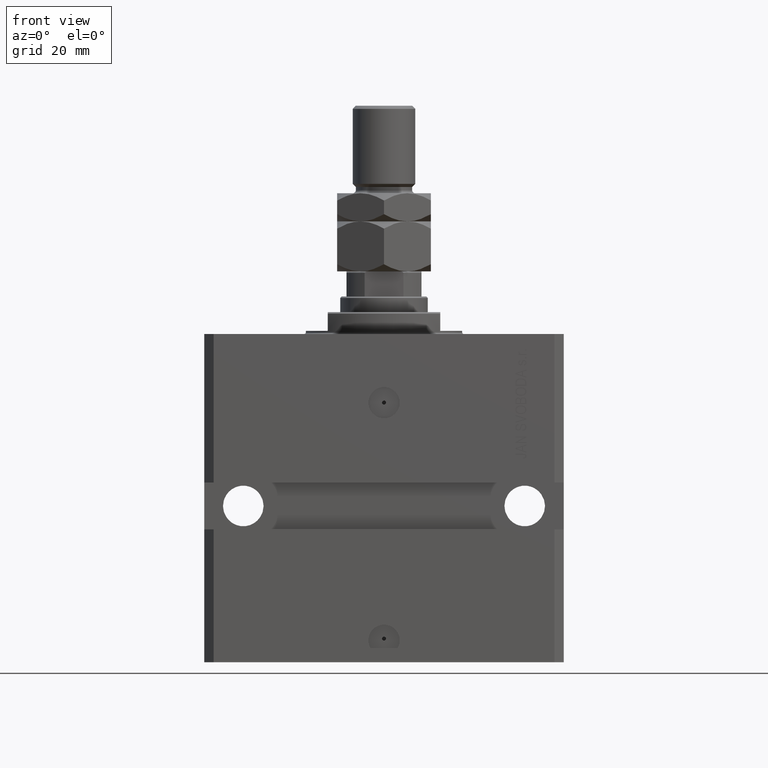
[diagram: clean part render]
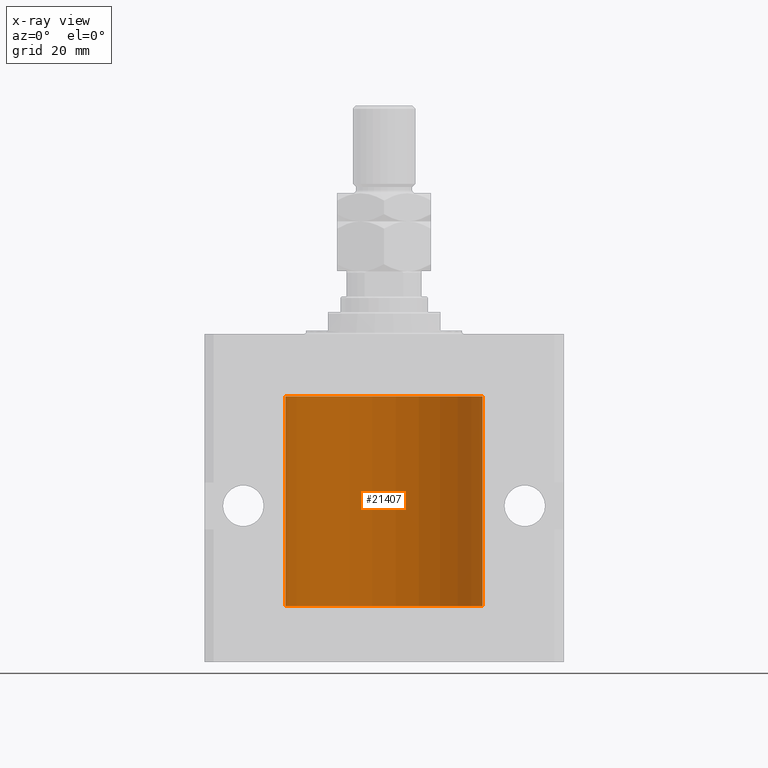
[diagram: x-ray — body ghosted, one internal face saturated and labeled with its STEP entity id]
A machine part, front view, then the same camera in x-ray: the body is ghosted and one INTERNAL B-rep face — a face not visible from any outside direction — is saturated and labeled: STEP entity #21407.
In plain terms, the highlighted cylindrical surface (partial cylindrical patch) has radius 31.5 mm, axis along (0, 0, 1).
Its self-contained STEP definition (entity closure, byte-faithful):
#73 = VECTOR ( 'NONE', #11998, 1000.000000000000000 ) ;
#453 = DIRECTION ( 'NONE',  ( -0.000000000000000000, -0.000000000000000000, 1.000000000000000000 ) ) ;
#626 = VERTEX_POINT ( 'NONE', #49379 ) ;
#755 = CARTESIAN_POINT ( 'NONE',  ( -31.50000000000000000, 3.857637417314162689E-15, -87.09999999999999432 ) ) ;
#942 = EDGE_CURVE ( 'NONE', #26500, #33557, #9376, .T. ) ;
#949 = CARTESIAN_POINT ( 'NONE',  ( -31.49379784581975272, 0.6250577973157672718, -84.16284184848845484 ) ) ;
#1196 = CARTESIAN_POINT ( 'NONE',  ( -31.49528028230855270, 0.5573323339569611345, -83.67349008819321909 ) ) ;
#1249 = EDGE_CURVE ( 'NONE', #5284, #40897, #41856, .T. ) ;
#1698 = CARTESIAN_POINT ( 'NONE',  ( -31.49526081842315151, 0.5587119163470756211, -84.32511513093052713 ) ) ;
#2864 = CARTESIAN_POINT ( 'NONE',  ( -31.49380014137586414, 0.6249421240571522151, -28.83671479190292075 ) ) ;
#2955 = CARTESIAN_POINT ( 'NONE',  ( 31.49770674525947101, 0.3844410175904570126, -29.49948347834465068 ) ) ;
#2999 = VECTOR ( 'NONE', #21179, 1000.000000000000000 ) ;
#3024 = CARTESIAN_POINT ( 'NONE',  ( -31.50000000000006395, 3.480981129463732167E-13, -84.62500000000324007 ) ) ;
#3166 = DIRECTION ( 'NONE',  ( 0.000000000000000000, 0.000000000000000000, 1.000000000000000000 ) ) ;
#3346 = EDGE_LOOP ( 'NONE', ( #13160, #38398, #16537, #26370, #8882, #19718, #13960, #41762, #34990, #38172, #24400, #17525, #46206, #20488 ) ) ;
#3899 = CARTESIAN_POINT ( 'NONE',  ( 0.000000000000000000, 0.000000000000000000, -87.09999999999999432 ) ) ;
#4084 = CARTESIAN_POINT ( 'NONE',  ( 31.50000000000000000, -1.286676774952591455E-15, -29.62500000000000000 ) ) ;
#5284 = VERTEX_POINT ( 'NONE', #44558 ) ;
#5496 = VERTEX_POINT ( 'NONE', #32636 ) ;
#5531 = CARTESIAN_POINT ( 'NONE',  ( 31.50000000000000000, 0.000000000000000000, -87.09999999999999432 ) ) ;
#5558 = CARTESIAN_POINT ( 'NONE',  ( -31.49966591610109390, 0.1636376958180636443, -83.39126189995840832 ) ) ;
#5582 = AXIS2_PLACEMENT_3D ( 'NONE', #28767, #13357, #24143 ) ;
#6409 = CARTESIAN_POINT ( 'NONE',  ( 31.50000000000000000, -2.492939093807799249E-15, -84.62499999999998579 ) ) ;
#6860 = VERTEX_POINT ( 'NONE', #28270 ) ;
#7223 = CARTESIAN_POINT ( 'NONE',  ( -31.49770767031179730, 0.3843648832734374854, -28.50046081259655395 ) ) ;
#7279 = CARTESIAN_POINT ( 'NONE',  ( 31.50000000000000000, -2.492939093807799249E-15, -84.62499999999998579 ) ) ;
#7733 = EDGE_CURVE ( 'NONE', #33557, #28521, #47917, .T. ) ;
#7782 = EDGE_CURVE ( 'NONE', #46699, #40897, #9888, .T. ) ;
#8458 = DIRECTION ( 'NONE',  ( 0.000000000000000000, 0.000000000000000000, 1.000000000000000000 ) ) ;
#8533 = CARTESIAN_POINT ( 'NONE',  ( 31.49379899281745665, 0.6250000000082825968, -83.99999999999904787 ) ) ;
#8543 = CARTESIAN_POINT ( 'NONE',  ( 31.49770674525946390, 0.3844410175904657834, -84.49948347834464357 ) ) ;
#8655 = CARTESIAN_POINT ( 'NONE',  ( -31.49999999999998579, 0.08259258789479478891, -83.37499999999998579 ) ) ;
#8882 = ORIENTED_EDGE ( 'NONE', *, *, #42373, .T. ) ;
#9062 = AXIS2_PLACEMENT_3D ( 'NONE', #39274, #8458, #23594 ) ;
#9376 = B_SPLINE_CURVE_WITH_KNOTS ( 'NONE', 3,
 ( #31080, #12324, #26960, #20005, #35674, #43119 ),
 .UNSPECIFIED., .F., .F.,
 ( 4, 2, 4 ),
 ( 0.0009772631991206452359, 0.001465673424414174614, 0.001954083649707703992 ),
 .UNSPECIFIED. ) ;
#9405 = CARTESIAN_POINT ( 'NONE',  ( -31.50000000000000000, 7.975607743522037396E-16, -83.37500000000000000 ) ) ;
#9888 = LINE ( 'NONE', #37614, #33348 ) ;
#10057 = VECTOR ( 'NONE', #25035, 1000.000000000000000 ) ;
#11213 = EDGE_CURVE ( 'NONE', #11453, #26500, #22756, .T. ) ;
#11410 = CARTESIAN_POINT ( 'NONE',  ( 31.49966575203784558, 0.1636755595825546972, -29.60873030821186802 ) ) ;
#11453 = VERTEX_POINT ( 'NONE', #4084 ) ;
#11998 = DIRECTION ( 'NONE',  ( -0.000000000000000000, -0.000000000000000000, 1.000000000000000000 ) ) ;
#12324 = CARTESIAN_POINT ( 'NONE',  ( 31.49379899281762363, 0.6249999999996151967, -28.83697036533062885 ) ) ;
#12512 = CARTESIAN_POINT ( 'NONE',  ( -31.50000000000006395, 3.480981129463732167E-13, -84.62500000000324007 ) ) ;
#13160 = ORIENTED_EDGE ( 'NONE', *, *, #7782, .F. ) ;
#13357 = DIRECTION ( 'NONE',  ( -0.000000000000000000, -0.000000000000000000, 1.000000000000000000 ) ) ;
#13960 = ORIENTED_EDGE ( 'NONE', *, *, #11213, .T. ) ;
#14154 = CARTESIAN_POINT ( 'NONE',  ( 31.49853627283156499, 0.3253078817183396310, -83.44140989403643971 ) ) ;
#14399 = EDGE_CURVE ( 'NONE', #6860, #31619, #20009, .T. ) ;
#14420 = CARTESIAN_POINT ( 'NONE',  ( -31.49379784581975983, 0.6250577973157599443, -29.16284184848848327 ) ) ;
#14428 = DIRECTION ( 'NONE',  ( -0.000000000000000000, -0.000000000000000000, 1.000000000000000000 ) ) ;
#14503 = B_SPLINE_CURVE_WITH_KNOTS ( 'NONE', 3,
 ( #7279, #22929, #28563, #20847, #8543, #23940, #47578, #44217 ),
 .UNSPECIFIED., .F., .F.,
 ( 4, 2, 2, 4 ),
 ( 2.422664849601941982E-18, 0.0002443157997801665674, 0.0004886315995603306411, 0.0009772631991206588969 ),
 .UNSPECIFIED. ) ;
#14933 = CARTESIAN_POINT ( 'NONE',  ( -31.50000000000000000, 0.08259258789479792529, -28.37500000000000355 ) ) ;
#15021 = CARTESIAN_POINT ( 'NONE',  ( 31.49379899281745665, 0.6250000000082756024, -28.99999999999905853 ) ) ;
#15145 = B_SPLINE_CURVE_WITH_KNOTS ( 'NONE', 3,
 ( #8533, #39858, #32169, #14154, #29319, #17748 ),
 .UNSPECIFIED., .F., .F.,
 ( 4, 2, 4 ),
 ( 0.0009772631991206588969, 0.001465673424414194563, 0.001954083649707730446 ),
 .UNSPECIFIED. ) ;
#15620 = CARTESIAN_POINT ( 'NONE',  ( 31.50000000000000000, 0.000000000000000000, -87.09999999999999432 ) ) ;
#15846 = LINE ( 'NONE', #31526, #73 ) ;
#16537 = ORIENTED_EDGE ( 'NONE', *, *, #18033, .T. ) ;
#17365 = CARTESIAN_POINT ( 'NONE',  ( -31.49853548231893541, 0.3253851488062164399, -84.55855470525685291 ) ) ;
#17525 = ORIENTED_EDGE ( 'NONE', *, *, #14399, .T. ) ;
#17748 = CARTESIAN_POINT ( 'NONE',  ( 31.50000000000006395, 3.442404755096224483E-13, -83.37499999999675993 ) ) ;
#18019 = CIRCLE ( 'NONE', #50832, 31.50000000000000000 ) ;
#18033 = EDGE_CURVE ( 'NONE', #30569, #30515, #42153, .T. ) ;
#18263 = CARTESIAN_POINT ( 'NONE',  ( -31.49526081842315151, 0.5587119163470772865, -29.32511513093050937 ) ) ;
#18289 = VECTOR ( 'NONE', #453, 1000.000000000000000 ) ;
#18353 = CARTESIAN_POINT ( 'NONE',  ( 31.50000000000000711, 0.08261130139621915280, -29.62499999999999289 ) ) ;
#19025 = CARTESIAN_POINT ( 'NONE',  ( -31.49966591610108679, 0.1636376958180631447, -28.39126189995838700 ) ) ;
#19718 = ORIENTED_EDGE ( 'NONE', *, *, #28254, .T. ) ;
#20005 = CARTESIAN_POINT ( 'NONE',  ( 31.49853627283156499, 0.3253078817183363558, -28.44140989403645747 ) ) ;
#20009 = B_SPLINE_CURVE_WITH_KNOTS ( 'NONE', 3,
 ( #50108, #14933, #19025, #42392, #7223, #49855, #2864, #14420, #18263, #46005, #22871, #34699 ),
 .UNSPECIFIED., .F., .F.,
 ( 4, 2, 2, 2, 2, 4 ),
 ( 5.322949309211407119E-19, 0.0002442604562134704257, 0.0004885209124269403094, 0.0009770418248538795345, 0.001465562737280818977, 0.001954083649707758635 ),
 .UNSPECIFIED. ) ;
#20454 = CARTESIAN_POINT ( 'NONE',  ( -31.50000000000000000, 3.857637417314162689E-15, -20.00000000000000355 ) ) ;
#20488 = ORIENTED_EDGE ( 'NONE', *, *, #1249, .T. ) ;
#20847 = CARTESIAN_POINT ( 'NONE',  ( 31.49851501686590893, 0.3150934959385818801, -84.54594721883857744 ) ) ;
#21179 = DIRECTION ( 'NONE',  ( -0.000000000000000000, -0.000000000000000000, 1.000000000000000000 ) ) ;
#21205 = CARTESIAN_POINT ( 'NONE',  ( -31.49380014137585704, 0.6249421240571523262, -83.83671479190289233 ) ) ;
#21407 = ADVANCED_FACE ( 'NONE', ( #48285 ), #35960, .F. ) ;
#21638 = CARTESIAN_POINT ( 'NONE',  ( 31.49379899281745665, 0.6250000000082756024, -28.99999999999905853 ) ) ;
#22756 = B_SPLINE_CURVE_WITH_KNOTS ( 'NONE', 3,
 ( #22965, #18353, #11410, #34783, #2955, #38643, #38891, #15021 ),
 .UNSPECIFIED., .F., .F.,
 ( 4, 2, 2, 4 ),
 ( 1.824539386392990385E-18, 0.0002443157997801608753, 0.0004886315995603199075, 0.0009772631991206452359 ),
 .UNSPECIFIED. ) ;
#22871 = CARTESIAN_POINT ( 'NONE',  ( -31.50000000000000711, 0.1631661150515227865, -29.62499999999986500 ) ) ;
#22929 = CARTESIAN_POINT ( 'NONE',  ( 31.50000000000000000, 0.08261130139621999935, -84.62499999999995737 ) ) ;
#22965 = CARTESIAN_POINT ( 'NONE',  ( 31.50000000000000000, -1.286676774952591455E-15, -29.62500000000000000 ) ) ;
#23594 = DIRECTION ( 'NONE',  ( 1.000000000000000000, 0.000000000000000000, 0.000000000000000000 ) ) ;
#23940 = CARTESIAN_POINT ( 'NONE',  ( 31.49527883250257432, 0.5574151849338155884, -84.32638608454756479 ) ) ;
#24143 = DIRECTION ( 'NONE',  ( 1.000000000000000000, 0.000000000000000000, 0.000000000000000000 ) ) ;
#24400 = ORIENTED_EDGE ( 'NONE', *, *, #36126, .F. ) ;
#25035 = DIRECTION ( 'NONE',  ( -0.000000000000000000, -0.000000000000000000, 1.000000000000000000 ) ) ;
#25060 = CARTESIAN_POINT ( 'NONE',  ( -31.49770767031179730, 0.3843648832734379295, -83.50046081259654329 ) ) ;
#25731 = CARTESIAN_POINT ( 'NONE',  ( 31.50000000000000000, 0.000000000000000000, -87.09999999999999432 ) ) ;
#26370 = ORIENTED_EDGE ( 'NONE', *, *, #43081, .T. ) ;
#26500 = VERTEX_POINT ( 'NONE', #21638 ) ;
#26827 = CARTESIAN_POINT ( 'NONE',  ( 31.50000000000006395, 3.442404531757459093E-13, -28.37499999999677058 ) ) ;
#26960 = CARTESIAN_POINT ( 'NONE',  ( 31.49526225382467359, 0.5586305680866376910, -28.67476160622149806 ) ) ;
#27023 = EDGE_CURVE ( 'NONE', #28521, #49068, #38574, .T. ) ;
#28254 = EDGE_CURVE ( 'NONE', #5496, #11453, #15846, .T. ) ;
#28270 = CARTESIAN_POINT ( 'NONE',  ( -31.50000000000000000, 6.762885151983182724E-15, -28.37500000000000355 ) ) ;
#28521 = VERTEX_POINT ( 'NONE', #31471 ) ;
#28563 = CARTESIAN_POINT ( 'NONE',  ( 31.49966575203785268, 0.1636755595825563903, -84.60873030821188934 ) ) ;
#28767 = CARTESIAN_POINT ( 'NONE',  ( 0.000000000000000000, 0.000000000000000000, -87.09999999999999432 ) ) ;
#29319 = CARTESIAN_POINT ( 'NONE',  ( 31.50000000000000000, 0.1631291455194407158, -83.37500000000014211 ) ) ;
#30515 = VERTEX_POINT ( 'NONE', #6409 ) ;
#30569 = VERTEX_POINT ( 'NONE', #15620 ) ;
#31080 = CARTESIAN_POINT ( 'NONE',  ( 31.49379899281745665, 0.6250000000082756024, -28.99999999999905853 ) ) ;
#31471 = CARTESIAN_POINT ( 'NONE',  ( 31.50000000000000000, 0.000000000000000000, -20.00000000000000355 ) ) ;
#31526 = CARTESIAN_POINT ( 'NONE',  ( 31.50000000000000000, 0.000000000000000000, -87.09999999999999432 ) ) ;
#31619 = VERTEX_POINT ( 'NONE', #36109 ) ;
#31789 = LINE ( 'NONE', #47446, #18289 ) ;
#32169 = CARTESIAN_POINT ( 'NONE',  ( 31.49526225382467359, 0.5586305680866429091, -83.67476160622149450 ) ) ;
#32438 = EDGE_CURVE ( 'NONE', #5284, #31619, #40455, .T. ) ;
#32636 = CARTESIAN_POINT ( 'NONE',  ( 31.50000000000006395, 3.442404755096224483E-13, -83.37499999999675993 ) ) ;
#33261 = DIRECTION ( 'NONE',  ( -0.000000000000000000, -0.000000000000000000, 1.000000000000000000 ) ) ;
#33348 = VECTOR ( 'NONE', #33261, 1000.000000000000000 ) ;
#33557 = VERTEX_POINT ( 'NONE', #26827 ) ;
#34492 = DIRECTION ( 'NONE',  ( 1.000000000000000000, 0.000000000000000000, 0.000000000000000000 ) ) ;
#34699 = CARTESIAN_POINT ( 'NONE',  ( -31.50000000000006395, 3.480980906124966778E-13, -29.62500000000323297 ) ) ;
#34783 = CARTESIAN_POINT ( 'NONE',  ( 31.49851501686590893, 0.3150934959385772727, -29.54594721883858099 ) ) ;
#34990 = ORIENTED_EDGE ( 'NONE', *, *, #7733, .T. ) ;
#35674 = CARTESIAN_POINT ( 'NONE',  ( 31.50000000000000000, 0.1631291455194386619, -28.37500000000015277 ) ) ;
#35960 = CYLINDRICAL_SURFACE ( 'NONE', #5582, 31.50000000000000000 ) ;
#36109 = CARTESIAN_POINT ( 'NONE',  ( -31.50000000000006395, 3.480980906124966778E-13, -29.62500000000323297 ) ) ;
#36126 = EDGE_CURVE ( 'NONE', #6860, #49068, #31789, .T. ) ;
#37614 = CARTESIAN_POINT ( 'NONE',  ( -31.50000000000000000, 3.857637417314162689E-15, -87.09999999999999432 ) ) ;
#38172 = ORIENTED_EDGE ( 'NONE', *, *, #27023, .T. ) ;
#38398 = ORIENTED_EDGE ( 'NONE', *, *, #47153, .F. ) ;
#38574 = CIRCLE ( 'NONE', #9062, 31.50000000000000000 ) ;
#38643 = CARTESIAN_POINT ( 'NONE',  ( 31.49527883250257432, 0.5574151849338060405, -29.32638608454755058 ) ) ;
#38891 = CARTESIAN_POINT ( 'NONE',  ( 31.49379899281760231, 0.6250000000003351763, -29.16310352862698352 ) ) ;
#39274 = CARTESIAN_POINT ( 'NONE',  ( 0.000000000000000000, 0.000000000000000000, -20.00000000000000355 ) ) ;
#39858 = CARTESIAN_POINT ( 'NONE',  ( 31.49379899281762363, 0.6249999999996236344, -83.83697036533064306 ) ) ;
#39958 = CARTESIAN_POINT ( 'NONE',  ( -31.50000000000000000, 3.857637417314162689E-15, -87.09999999999999432 ) ) ;
#40455 = LINE ( 'NONE', #39958, #10057 ) ;
#40897 = VERTEX_POINT ( 'NONE', #3024 ) ;
#41762 = ORIENTED_EDGE ( 'NONE', *, *, #942, .T. ) ;
#41856 = B_SPLINE_CURVE_WITH_KNOTS ( 'NONE', 3,
 ( #9405, #8655, #5558, #47691, #25060, #1196, #21205, #949, #1698, #17365, #48700, #12512 ),
 .UNSPECIFIED., .F., .F.,
 ( 4, 2, 2, 2, 2, 4 ),
 ( 3.075703443732137786E-18, 0.0002442604562134845204, 0.0004885209124269658965, 0.0009770418248538992670, 0.001465562737280832637, 0.001954083649707766008 ),
 .UNSPECIFIED. ) ;
#42153 = LINE ( 'NONE', #25731, #42564 ) ;
#42373 = EDGE_CURVE ( 'NONE', #626, #5496, #15145, .T. ) ;
#42392 = CARTESIAN_POINT ( 'NONE',  ( -31.49851563474691929, 0.3150284575672404608, -28.45401791159624949 ) ) ;
#42564 = VECTOR ( 'NONE', #14428, 1000.000000000000000 ) ;
#43081 = EDGE_CURVE ( 'NONE', #30515, #626, #14503, .T. ) ;
#43119 = CARTESIAN_POINT ( 'NONE',  ( 31.50000000000006395, 3.442404531757459093E-13, -28.37499999999677058 ) ) ;
#44217 = CARTESIAN_POINT ( 'NONE',  ( 31.49379899281745665, 0.6250000000082825968, -83.99999999999904787 ) ) ;
#44558 = CARTESIAN_POINT ( 'NONE',  ( -31.50000000000000000, 7.975607743522037396E-16, -83.37500000000000000 ) ) ;
#46005 = CARTESIAN_POINT ( 'NONE',  ( -31.49853548231893541, 0.3253851488062238784, -29.55855470525682094 ) ) ;
#46206 = ORIENTED_EDGE ( 'NONE', *, *, #32438, .F. ) ;
#46699 = VERTEX_POINT ( 'NONE', #755 ) ;
#47153 = EDGE_CURVE ( 'NONE', #30569, #46699, #18019, .T. ) ;
#47446 = CARTESIAN_POINT ( 'NONE',  ( -31.50000000000000000, 3.857637417314162689E-15, -87.09999999999999432 ) ) ;
#47578 = CARTESIAN_POINT ( 'NONE',  ( 31.49379899281760942, 0.6250000000003405054, -84.16310352862699062 ) ) ;
#47691 = CARTESIAN_POINT ( 'NONE',  ( -31.49851563474691218, 0.3150284575672411824, -83.45401791159622462 ) ) ;
#47917 = LINE ( 'NONE', #5531, #2999 ) ;
#48285 = FACE_OUTER_BOUND ( 'NONE', #3346, .T. ) ;
#48700 = CARTESIAN_POINT ( 'NONE',  ( -31.49999999999998579, 0.1631661150515253123, -84.62499999999982947 ) ) ;
#49068 = VERTEX_POINT ( 'NONE', #20454 ) ;
#49379 = CARTESIAN_POINT ( 'NONE',  ( 31.49379899281745665, 0.6250000000082825968, -83.99999999999904787 ) ) ;
#49855 = CARTESIAN_POINT ( 'NONE',  ( -31.49528028230854559, 0.5573323339569596913, -28.67349008819320488 ) ) ;
#50108 = CARTESIAN_POINT ( 'NONE',  ( -31.50000000000000000, 6.762885151983182724E-15, -28.37500000000000355 ) ) ;
#50832 = AXIS2_PLACEMENT_3D ( 'NONE', #3899, #3166, #34492 ) ;